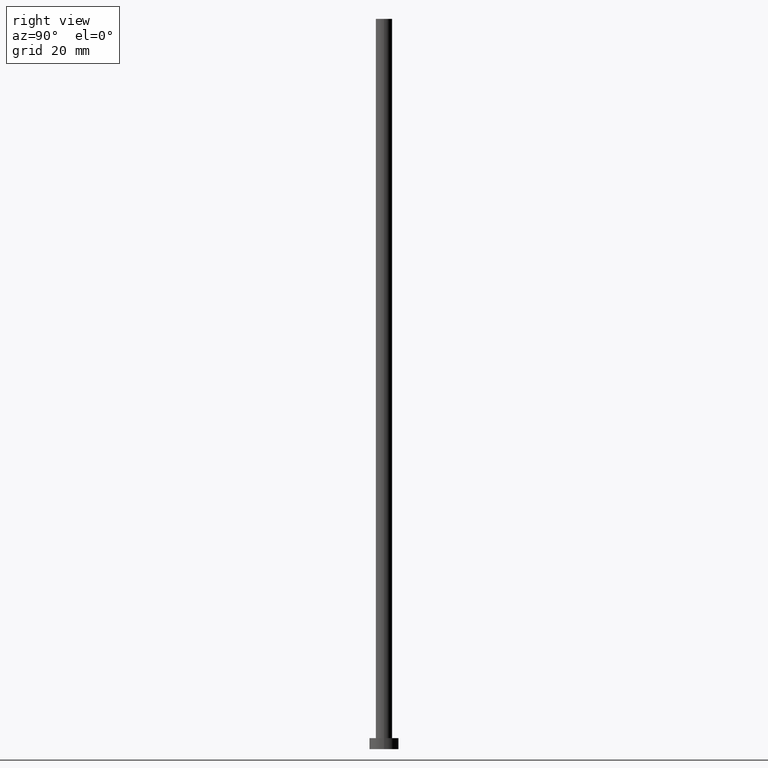
[diagram: clean part render]
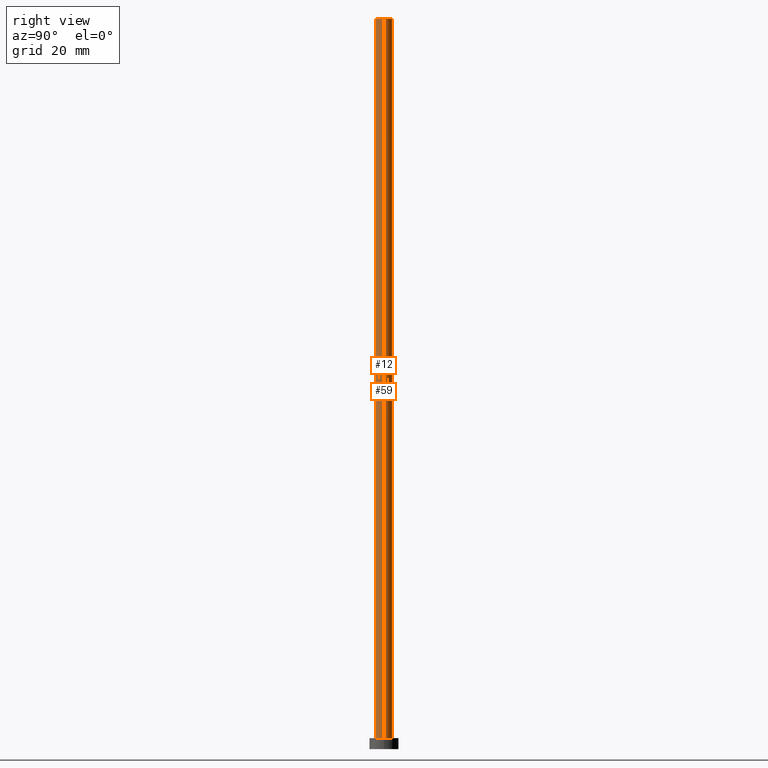
[diagram: same view with one multi-face feature highlighted, each face labeled with its STEP entity id]
A machine part, right view. The highlighted faces form ONE feature: a constant-radius fillet chain: 2 tangent blend faces with common blend radius 2.25 mm. The faces share edges in the B-rep.
Their STEP definitions:
[1] entity #59 (Cylinder):
#5 = VERTEX_POINT ( 'NONE', #140 ) ;
#23 = CARTESIAN_POINT ( 'NONE',  ( -2.250000000000000000, 0.000000000000000000, 200.0000000000000000 ) ) ;
#26 = DIRECTION ( 'NONE',  ( -0.000000000000000000, -0.000000000000000000, -1.000000000000000000 ) ) ;
#28 = VECTOR ( 'NONE', #26, 1000.000000000000000 ) ;
#45 = LINE ( 'NONE', #122, #150 ) ;
#57 = ORIENTED_EDGE ( 'NONE', *, *, #181, .F. ) ;
#59 = ADVANCED_FACE ( 'NONE', ( #101 ), #238, .T. ) ;
#61 = DIRECTION ( 'NONE',  ( 0.000000000000000000, 0.000000000000000000, 1.000000000000000000 ) ) ;
#66 = DIRECTION ( 'NONE',  ( -1.000000000000000000, 0.000000000000000000, 0.000000000000000000 ) ) ;
#70 = EDGE_CURVE ( 'NONE', #248, #5, #245, .T. ) ;
#74 = AXIS2_PLACEMENT_3D ( 'NONE', #104, #184, #225 ) ;
#76 = VERTEX_POINT ( 'NONE', #23 ) ;
#87 = AXIS2_PLACEMENT_3D ( 'NONE', #120, #144, #66 ) ;
#98 = EDGE_CURVE ( 'NONE', #103, #248, #45, .T. ) ;
#101 = FACE_OUTER_BOUND ( 'NONE', #152, .T. ) ;
#103 = VERTEX_POINT ( 'NONE', #202 ) ;
#104 = CARTESIAN_POINT ( 'NONE',  ( 0.000000000000000000, 0.000000000000000000, 200.0000000000000000 ) ) ;
#105 = CARTESIAN_POINT ( 'NONE',  ( -2.250000000000000000, 0.000000000000000000, 200.0000000000000000 ) ) ;
#112 = CARTESIAN_POINT ( 'NONE',  ( 2.250000000000000000, 2.755455298081544285E-16, 3.000000000000000000 ) ) ;
#120 = CARTESIAN_POINT ( 'NONE',  ( 0.000000000000000000, 0.000000000000000000, 200.0000000000000000 ) ) ;
#122 = CARTESIAN_POINT ( 'NONE',  ( 2.250000000000000000, 2.755455298081544285E-16, 200.0000000000000000 ) ) ;
#137 = DIRECTION ( 'NONE',  ( 1.000000000000000000, 0.000000000000000000, 0.000000000000000000 ) ) ;
#140 = CARTESIAN_POINT ( 'NONE',  ( -2.250000000000000000, 0.000000000000000000, 3.000000000000000000 ) ) ;
#144 = DIRECTION ( 'NONE',  ( -0.000000000000000000, -0.000000000000000000, -1.000000000000000000 ) ) ;
#147 = DIRECTION ( 'NONE',  ( -0.000000000000000000, -0.000000000000000000, -1.000000000000000000 ) ) ;
#150 = VECTOR ( 'NONE', #147, 1000.000000000000000 ) ;
#152 = EDGE_LOOP ( 'NONE', ( #182, #155, #224, #57 ) ) ;
#155 = ORIENTED_EDGE ( 'NONE', *, *, #98, .T. ) ;
#169 = EDGE_CURVE ( 'NONE', #103, #76, #227, .T. ) ;
#181 = EDGE_CURVE ( 'NONE', #76, #5, #241, .T. ) ;
#182 = ORIENTED_EDGE ( 'NONE', *, *, #169, .F. ) ;
#184 = DIRECTION ( 'NONE',  ( 0.000000000000000000, 0.000000000000000000, 1.000000000000000000 ) ) ;
#202 = CARTESIAN_POINT ( 'NONE',  ( 2.250000000000000000, 2.755455298081544285E-16, 200.0000000000000000 ) ) ;
#215 = CARTESIAN_POINT ( 'NONE',  ( 0.000000000000000000, 0.000000000000000000, 3.000000000000000000 ) ) ;
#224 = ORIENTED_EDGE ( 'NONE', *, *, #70, .T. ) ;
#225 = DIRECTION ( 'NONE',  ( 1.000000000000000000, 0.000000000000000000, 0.000000000000000000 ) ) ;
#227 = CIRCLE ( 'NONE', #74, 2.250000000000000000 ) ;
#238 = CYLINDRICAL_SURFACE ( 'NONE', #87, 2.250000000000000000 ) ;
#241 = LINE ( 'NONE', #105, #28 ) ;
#245 = CIRCLE ( 'NONE', #254, 2.250000000000000000 ) ;
#248 = VERTEX_POINT ( 'NONE', #112 ) ;
#254 = AXIS2_PLACEMENT_3D ( 'NONE', #215, #61, #137 ) ;
[2] entity #12 (Cylinder):
#5 = VERTEX_POINT ( 'NONE', #140 ) ;
#12 = ADVANCED_FACE ( 'NONE', ( #97 ), #251, .T. ) ;
#21 = DIRECTION ( 'NONE',  ( 0.000000000000000000, 0.000000000000000000, 1.000000000000000000 ) ) ;
#23 = CARTESIAN_POINT ( 'NONE',  ( -2.250000000000000000, 0.000000000000000000, 200.0000000000000000 ) ) ;
#26 = DIRECTION ( 'NONE',  ( -0.000000000000000000, -0.000000000000000000, -1.000000000000000000 ) ) ;
#28 = VECTOR ( 'NONE', #26, 1000.000000000000000 ) ;
#31 = CIRCLE ( 'NONE', #235, 2.250000000000000000 ) ;
#45 = LINE ( 'NONE', #122, #150 ) ;
#47 = ORIENTED_EDGE ( 'NONE', *, *, #98, .F. ) ;
#60 = DIRECTION ( 'NONE',  ( -0.000000000000000000, -0.000000000000000000, -1.000000000000000000 ) ) ;
#67 = CARTESIAN_POINT ( 'NONE',  ( 0.000000000000000000, 0.000000000000000000, 3.000000000000000000 ) ) ;
#76 = VERTEX_POINT ( 'NONE', #23 ) ;
#82 = ORIENTED_EDGE ( 'NONE', *, *, #131, .F. ) ;
#96 = EDGE_LOOP ( 'NONE', ( #47, #82, #205, #209 ) ) ;
#97 = FACE_OUTER_BOUND ( 'NONE', #96, .T. ) ;
#98 = EDGE_CURVE ( 'NONE', #103, #248, #45, .T. ) ;
#100 = AXIS2_PLACEMENT_3D ( 'NONE', #67, #132, #142 ) ;
#103 = VERTEX_POINT ( 'NONE', #202 ) ;
#105 = CARTESIAN_POINT ( 'NONE',  ( -2.250000000000000000, 0.000000000000000000, 200.0000000000000000 ) ) ;
#110 = AXIS2_PLACEMENT_3D ( 'NONE', #157, #60, #162 ) ;
#112 = CARTESIAN_POINT ( 'NONE',  ( 2.250000000000000000, 2.755455298081544285E-16, 3.000000000000000000 ) ) ;
#122 = CARTESIAN_POINT ( 'NONE',  ( 2.250000000000000000, 2.755455298081544285E-16, 200.0000000000000000 ) ) ;
#131 = EDGE_CURVE ( 'NONE', #76, #103, #31, .T. ) ;
#132 = DIRECTION ( 'NONE',  ( 0.000000000000000000, 0.000000000000000000, 1.000000000000000000 ) ) ;
#140 = CARTESIAN_POINT ( 'NONE',  ( -2.250000000000000000, 0.000000000000000000, 3.000000000000000000 ) ) ;
#142 = DIRECTION ( 'NONE',  ( 1.000000000000000000, 0.000000000000000000, 0.000000000000000000 ) ) ;
#147 = DIRECTION ( 'NONE',  ( -0.000000000000000000, -0.000000000000000000, -1.000000000000000000 ) ) ;
#150 = VECTOR ( 'NONE', #147, 1000.000000000000000 ) ;
#157 = CARTESIAN_POINT ( 'NONE',  ( 0.000000000000000000, 0.000000000000000000, 200.0000000000000000 ) ) ;
#162 = DIRECTION ( 'NONE',  ( -1.000000000000000000, 0.000000000000000000, 0.000000000000000000 ) ) ;
#181 = EDGE_CURVE ( 'NONE', #76, #5, #241, .T. ) ;
#186 = EDGE_CURVE ( 'NONE', #5, #248, #193, .T. ) ;
#193 = CIRCLE ( 'NONE', #100, 2.250000000000000000 ) ;
#201 = DIRECTION ( 'NONE',  ( 1.000000000000000000, 0.000000000000000000, 0.000000000000000000 ) ) ;
#202 = CARTESIAN_POINT ( 'NONE',  ( 2.250000000000000000, 2.755455298081544285E-16, 200.0000000000000000 ) ) ;
#205 = ORIENTED_EDGE ( 'NONE', *, *, #181, .T. ) ;
#209 = ORIENTED_EDGE ( 'NONE', *, *, #186, .T. ) ;
#235 = AXIS2_PLACEMENT_3D ( 'NONE', #239, #21, #201 ) ;
#239 = CARTESIAN_POINT ( 'NONE',  ( 0.000000000000000000, 0.000000000000000000, 200.0000000000000000 ) ) ;
#241 = LINE ( 'NONE', #105, #28 ) ;
#248 = VERTEX_POINT ( 'NONE', #112 ) ;
#251 = CYLINDRICAL_SURFACE ( 'NONE', #110, 2.250000000000000000 ) ;